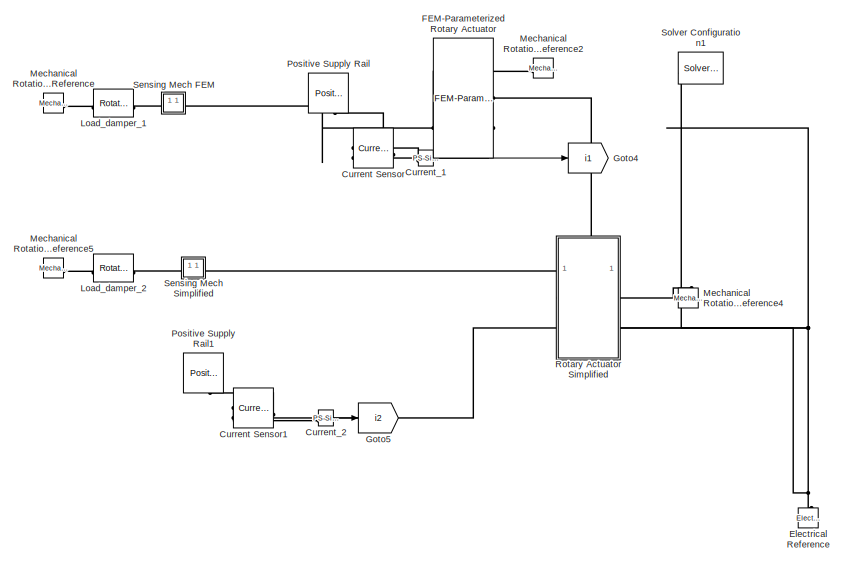
[diagram: root canvas - part 1/2, top left region]
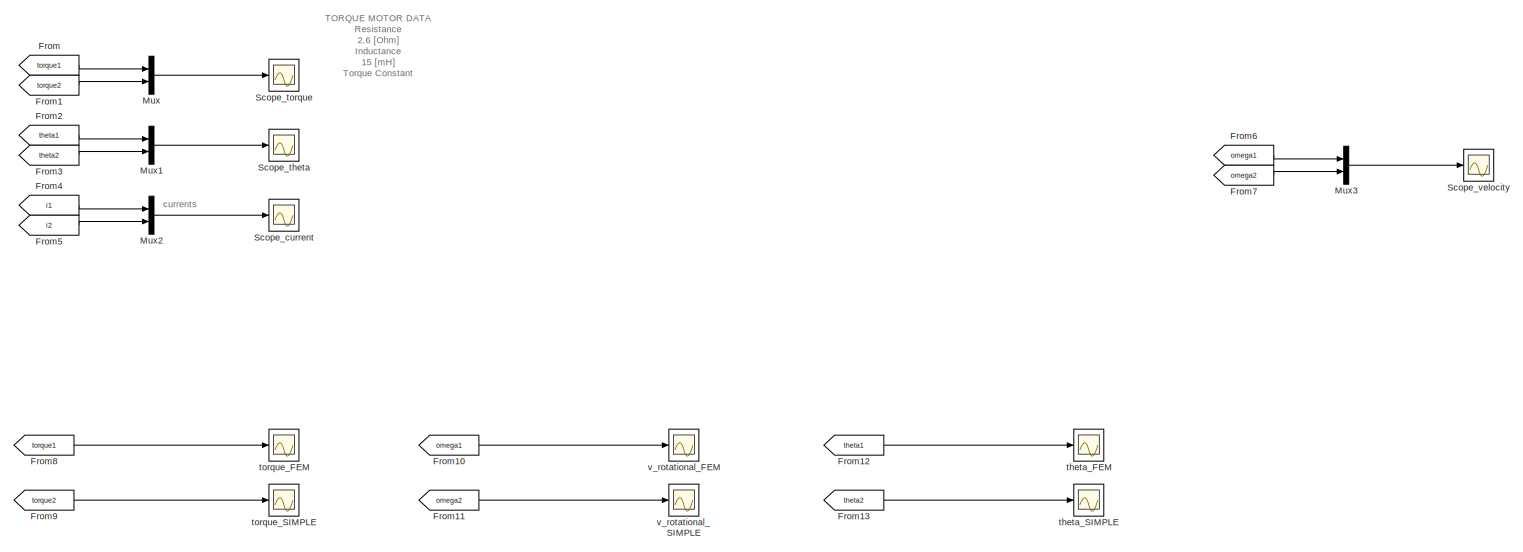
[diagram: root canvas - part 2/2, full width, bottom band]
MODEL slx_1f827622f27b
KIND model
CONFIG AbsTol = auto
CONFIG EnableMultiTasking = off
CONFIG FixedStep = auto
CONFIG MaxStep = auto
CONFIG MinStep = auto
CONFIG RelTol = 1e-3
CONFIG SampleTimeConstraint = Unconstrained
CONFIG SolverName = VariableStepAuto
CONFIG StartTime = 0.0
CONFIG StopTime = 10.0
BLOCK [Reference] Current Sensor  REF=fl_lib/Electrical/Electrical Sensors/Current Sensor
  SourceBlock = fl_lib/Electrical/Electrical Sensors/Current Sensor
  SourceType = Current Sensor
BLOCK [Reference] Current Sensor1  REF=fl_lib/Electrical/Electrical Sensors/Current Sensor
  SourceBlock = fl_lib/Electrical/Electrical Sensors/Current Sensor
  SourceType = Current Sensor
BLOCK [Reference] Current_1  REF=nesl_utility/PS-Simulink
Converter
  SourceBlock = nesl_utility/PS-Simulink\nConverter
  SourceType = PS-Simulink\nConverter
BLOCK [Reference] Current_2  REF=nesl_utility/PS-Simulink
Converter
  SourceBlock = nesl_utility/PS-Simulink\nConverter
  SourceType = PS-Simulink\nConverter
BLOCK [Reference] Electrical Reference  REF=fl_lib/Electrical/Electrical Elements/Electrical Reference
  NameLocation = right
  SourceBlock = fl_lib/Electrical/Electrical Elements/Electrical Reference
  SourceType = Electrical Reference
BLOCK [Reference] FEM-Parameterized Rotary Actuator  REF=ee_lib/Electromechanical/Mechatronic
Actuators/FEM-Parameterized
Rotary Actuator
  NameLocation = top
  SourceBlock = ee_lib/Electromechanical/Mechatronic\nActuators/FEM-Parameterized\nRotary Actuator
  SourceType = FEM-Parameterized\nRotary Actuator
BLOCK [From] From
  GotoTag = torque1
  TagVisibility = global
BLOCK [From] From1
  GotoTag = torque2
  TagVisibility = global
BLOCK [From] From10
  GotoTag = omega1
  TagVisibility = global
BLOCK [From] From11
  GotoTag = omega2
  TagVisibility = global
BLOCK [From] From12
  GotoTag = theta1
  TagVisibility = global
BLOCK [From] From13
  GotoTag = theta2
  TagVisibility = global
BLOCK [From] From2
  GotoTag = theta1
  TagVisibility = global
BLOCK [From] From3
  GotoTag = theta2
  TagVisibility = global
BLOCK [From] From4
  GotoTag = i1
  TagVisibility = global
BLOCK [From] From5
  GotoTag = i2
  TagVisibility = global
BLOCK [From] From6
  GotoTag = omega1
  TagVisibility = global
BLOCK [From] From7
  GotoTag = omega2
  TagVisibility = global
BLOCK [From] From8
  GotoTag = torque1
  TagVisibility = global
BLOCK [From] From9
  GotoTag = torque2
  TagVisibility = global
BLOCK [Goto] Goto4
  GotoTag = i1
  TagVisibility = global
BLOCK [Goto] Goto5
  GotoTag = i2
  TagVisibility = global
BLOCK [Reference] Load_damper_1  REF=fl_lib/Mechanical/Rotational Elements/Rotational Damper
  SourceBlock = fl_lib/Mechanical/Rotational Elements/Rotational Damper
  SourceType = Rotational Damper
BLOCK [Reference] Load_damper_2  REF=fl_lib/Mechanical/Rotational Elements/Rotational Damper
  SourceBlock = fl_lib/Mechanical/Rotational Elements/Rotational Damper
  SourceType = Rotational Damper
BLOCK [Reference] Mechanical Rotational Reference  REF=fl_lib/Mechanical/Rotational Elements/Mechanical
Rotational Reference
  SourceBlock = fl_lib/Mechanical/Rotational Elements/Mechanical\nRotational Reference
  SourceType = Mechanical\nRotational Reference
BLOCK [Reference] Mechanical Rotational Reference2  REF=fl_lib/Mechanical/Rotational Elements/Mechanical
Rotational Reference
  SourceBlock = fl_lib/Mechanical/Rotational Elements/Mechanical\nRotational Reference
  SourceType = Mechanical\nRotational Reference
BLOCK [Reference] Mechanical Rotational Reference4  REF=fl_lib/Mechanical/Rotational Elements/Mechanical
Rotational Reference
  NameLocation = right
  SourceBlock = fl_lib/Mechanical/Rotational Elements/Mechanical\nRotational Reference
  SourceType = Mechanical\nRotational Reference
BLOCK [Reference] Mechanical Rotational Reference5  REF=fl_lib/Mechanical/Rotational Elements/Mechanical
Rotational Reference
  SourceBlock = fl_lib/Mechanical/Rotational Elements/Mechanical\nRotational Reference
  SourceType = Mechanical\nRotational Reference
BLOCK [Mux] Mux
  DisplayOption = bar
  Inputs = 2
BLOCK [Mux] Mux1
  DisplayOption = bar
  Inputs = 2
BLOCK [Mux] Mux2
  DisplayOption = bar
  Inputs = 2
BLOCK [Mux] Mux3
  DisplayOption = bar
  Inputs = 2
BLOCK [Reference] Positive Supply Rail  REF=ee_lib/Sources/Positive Supply Rail
  NameLocation = right
  SourceBlock = ee_lib/Sources/Positive Supply Rail
  SourceType = Positive Supply Rail
BLOCK [Reference] Positive Supply Rail1  REF=ee_lib/Sources/Positive Supply Rail
  NameLocation = right
  SourceBlock = ee_lib/Sources/Positive Supply Rail
  SourceType = Positive Supply Rail
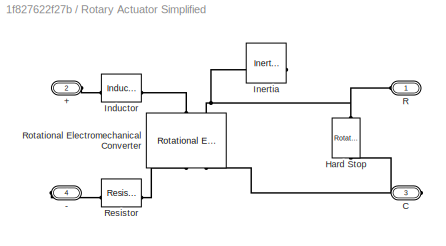
BLOCK [SubSystem] Rotary Actuator Simplified 
  Tag = PublishSubsystem
BLOCK [PMIOPort] Rotary Actuator Simplified /+
  Port = 2
  Side = Left
BLOCK [PMIOPort] Rotary Actuator Simplified /-
  Port = 4
  Side = Right
BLOCK [PMIOPort] Rotary Actuator Simplified /C
  Port = 3
  Side = Right
BLOCK [Reference] Rotary Actuator Simplified /Hard Stop  REF=fl_lib/Mechanical/Rotational Elements/Rotational Hard Stop
  NameLocation = right
  SourceBlock = fl_lib/Mechanical/Rotational Elements/Rotational Hard Stop
  SourceType = Rotational Hard Stop
BLOCK [Reference] Rotary Actuator Simplified /Inductor  REF=fl_lib/Electrical/Electrical Elements/Inductor
  SourceBlock = fl_lib/Electrical/Electrical Elements/Inductor
  SourceType = Inductor
BLOCK [Reference] Rotary Actuator Simplified /Inertia  REF=fl_lib/Mechanical/Rotational Elements/Inertia
  NameLocation = top
  SourceBlock = fl_lib/Mechanical/Rotational Elements/Inertia
  SourceType = Inertia
BLOCK [PMIOPort] Rotary Actuator Simplified /R
  Side = Left
BLOCK [Reference] Rotary Actuator Simplified /Resistor  REF=fl_lib/Electrical/Electrical Elements/Resistor
  NameLocation = top
  SourceBlock = fl_lib/Electrical/Electrical Elements/Resistor
  SourceType = Resistor
BLOCK [Reference] Rotary Actuator Simplified /Rotational Electromechanical Converter  REF=fl_lib/Electrical/Electrical Elements/Rotational
Electromechanical
Converter
  NameLocation = right
  SourceBlock = fl_lib/Electrical/Electrical Elements/Rotational\nElectromechanical\nConverter
  SourceType = Rotational\nElectromechanical\nConverter
BLOCK [Scope] Scope_current
  Floating = off
  NumInputPorts = 1
  ScopeSpecificationString = Simulink.scopes.TimeScopeBlockCfg('CurrentConfiguration', extmgr.ConfigurationSet(extmgr.Configuration('Core','General UI',true,'FigureColor',[1 1 1]),extmgr.Configuration('Core','Source UI',true),extmgr.Configuration('Sources','WiredSimulink',true,'DataLoggingVariableName','ScopeData1'),extmgr.Configuration('Visuals','Time Domain',true,'SerializedDisplays',{struct('MinYLimReal','-5','MaxYLimReal'...<+1760ch>
BLOCK [Scope] Scope_theta
  Floating = off
  NumInputPorts = 1
  ScopeSpecificationString = Simulink.scopes.TimeScopeBlockCfg('CurrentConfiguration', extmgr.ConfigurationSet(extmgr.Configuration('Core','General UI',true,'FigureColor',[1 1 1]),extmgr.Configuration('Core','Source UI',true),extmgr.Configuration('Sources','WiredSimulink',true,'DataLoggingVariableName','ScopeData2'),extmgr.Configuration('Visuals','Time Domain',true,'SerializedDisplays',{struct('MinYLimReal','13.75','MaxYLimRe...<+1798ch>
BLOCK [Scope] Scope_torque
  Floating = off
  NumInputPorts = 1
  ScopeSpecificationString = Simulink.scopes.TimeScopeBlockCfg('CurrentConfiguration', extmgr.ConfigurationSet(extmgr.Configuration('Core','General UI',true,'FigureColor',[1 1 1]),extmgr.Configuration('Core','Source UI',true),extmgr.Configuration('Sources','WiredSimulink',true,'DataLoggingVariableName','ScopeData3'),extmgr.Configuration('Visuals','Time Domain',true,'SerializedDisplays',{struct('MinYLimReal','-0.01448','MaxYLi...<+1834ch>
BLOCK [Scope] Scope_velocity
  Floating = off
  NumInputPorts = 1
  ScopeSpecificationString = Simulink.scopes.TimeScopeBlockCfg('CurrentConfiguration', extmgr.ConfigurationSet(extmgr.Configuration('Core','General UI',true,'FigureColor',[1 1 1]),extmgr.Configuration('Core','Source UI',true),extmgr.Configuration('Sources','WiredSimulink',true,'DataLoggingVariableName','ScopeData4'),extmgr.Configuration('Visuals','Time Domain',true,'SerializedDisplays',{struct('MinYLimReal','-0.2','MaxYLimRea...<+1769ch>
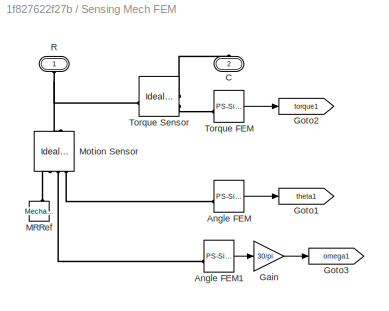
BLOCK [SubSystem] Sensing Mech FEM 
  NameLocation = top
BLOCK [Reference] Sensing Mech FEM /Angle FEM  REF=nesl_utility/PS-Simulink
Converter
  SourceBlock = nesl_utility/PS-Simulink\nConverter
  SourceType = PS-Simulink\nConverter
BLOCK [Reference] Sensing Mech FEM /Angle FEM1  REF=nesl_utility/PS-Simulink
Converter
  SourceBlock = nesl_utility/PS-Simulink\nConverter
  SourceType = PS-Simulink\nConverter
BLOCK [PMIOPort] Sensing Mech FEM /C
  NameLocation = right
  Port = 2
  Side = Right
BLOCK [Gain] Sensing Mech FEM /Gain
  Gain = 30/pi
BLOCK [Goto] Sensing Mech FEM /Goto1
  GotoTag = theta1
  TagVisibility = global
BLOCK [Goto] Sensing Mech FEM /Goto2
  GotoTag = torque1
  TagVisibility = global
BLOCK [Goto] Sensing Mech FEM /Goto3
  GotoTag = omega1
  TagVisibility = global
BLOCK [Reference] Sensing Mech FEM /MRRef  REF=fl_lib/Mechanical/Rotational Elements/Mechanical
Rotational Reference
  NameLocation = right
  SourceBlock = fl_lib/Mechanical/Rotational Elements/Mechanical\nRotational Reference
  SourceType = Mechanical\nRotational Reference
BLOCK [Reference] Sensing Mech FEM /Motion Sensor  REF=fl_lib/Mechanical/Mechanical Sensors/Ideal Rotational
Motion Sensor
  NameLocation = right
  SourceBlock = fl_lib/Mechanical/Mechanical Sensors/Ideal Rotational\nMotion Sensor
  SourceType = Ideal Rotational\nMotion Sensor
BLOCK [PMIOPort] Sensing Mech FEM /R
  NameLocation = right
  Side = Left
BLOCK [Reference] Sensing Mech FEM /Torque FEM  REF=nesl_utility/PS-Simulink
Converter
  SourceBlock = nesl_utility/PS-Simulink\nConverter
  SourceType = PS-Simulink\nConverter
BLOCK [Reference] Sensing Mech FEM /Torque Sensor  REF=fl_lib/Mechanical/Mechanical Sensors/Ideal Torque Sensor
  SourceBlock = fl_lib/Mechanical/Mechanical Sensors/Ideal Torque Sensor
  SourceType = Ideal Torque Sensor
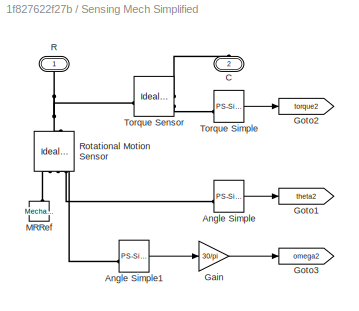
BLOCK [SubSystem] Sensing Mech Simplified
  NameLocation = top
BLOCK [Reference] Sensing Mech Simplified/Angle Simple  REF=nesl_utility/PS-Simulink
Converter
  SourceBlock = nesl_utility/PS-Simulink\nConverter
  SourceType = PS-Simulink\nConverter
BLOCK [Reference] Sensing Mech Simplified/Angle Simple1  REF=nesl_utility/PS-Simulink
Converter
  SourceBlock = nesl_utility/PS-Simulink\nConverter
  SourceType = PS-Simulink\nConverter
BLOCK [PMIOPort] Sensing Mech Simplified/C
  NameLocation = right
  Port = 2
  Side = Right
BLOCK [Gain] Sensing Mech Simplified/Gain
  Gain = 30/pi
BLOCK [Goto] Sensing Mech Simplified/Goto1
  GotoTag = theta2
  TagVisibility = global
BLOCK [Goto] Sensing Mech Simplified/Goto2
  GotoTag = torque2
  TagVisibility = global
BLOCK [Goto] Sensing Mech Simplified/Goto3
  GotoTag = omega2
  TagVisibility = global
BLOCK [Reference] Sensing Mech Simplified/MRRef  REF=fl_lib/Mechanical/Rotational Elements/Mechanical
Rotational Reference
  NameLocation = right
  SourceBlock = fl_lib/Mechanical/Rotational Elements/Mechanical\nRotational Reference
  SourceType = Mechanical\nRotational Reference
BLOCK [PMIOPort] Sensing Mech Simplified/R
  NameLocation = right
  Side = Left
BLOCK [Reference] Sensing Mech Simplified/Rotational Motion Sensor  REF=fl_lib/Mechanical/Mechanical Sensors/Ideal Rotational
Motion Sensor
  NameLocation = right
  SourceBlock = fl_lib/Mechanical/Mechanical Sensors/Ideal Rotational\nMotion Sensor
  SourceType = Ideal Rotational\nMotion Sensor
BLOCK [Reference] Sensing Mech Simplified/Torque Sensor  REF=fl_lib/Mechanical/Mechanical Sensors/Ideal Torque Sensor
  SourceBlock = fl_lib/Mechanical/Mechanical Sensors/Ideal Torque Sensor
  SourceType = Ideal Torque Sensor
BLOCK [Reference] Sensing Mech Simplified/Torque Simple  REF=nesl_utility/PS-Simulink
Converter
  SourceBlock = nesl_utility/PS-Simulink\nConverter
  SourceType = PS-Simulink\nConverter
BLOCK [Reference] Solver Configuration1  REF=nesl_utility/Solver
Configuration
  SourceBlock = nesl_utility/Solver\nConfiguration
  SourceType = Solver\nConfiguration
BLOCK [Scope] theta_FEM
  Floating = off
  NumInputPorts = 1
  ScopeSpecificationString = Simulink.scopes.TimeScopeBlockCfg('CurrentConfiguration', extmgr.ConfigurationSet(extmgr.Configuration('Core','General UI',true,'FigureColor',[1 1 1]),extmgr.Configuration('Core','Source UI',true),extmgr.Configuration('Sources','WiredSimulink',true,'DataLoggingVariableName','ScopeData5','DataLogging',true,'DataLoggingSaveFormat','Array'),extmgr.Configuration('Visuals','Time Domain',true,'Serialize...<+1835ch>
BLOCK [Scope] theta_SIMPLE
  Floating = off
  NumInputPorts = 1
  ScopeSpecificationString = Simulink.scopes.TimeScopeBlockCfg('CurrentConfiguration', extmgr.ConfigurationSet(extmgr.Configuration('Core','General UI',true,'FigureColor',[1 1 1]),extmgr.Configuration('Core','Source UI',true),extmgr.Configuration('Sources','WiredSimulink',true,'DataLoggingVariableName','ScopeData6','DataLogging',true,'DataLoggingSaveFormat','Array'),extmgr.Configuration('Visuals','Time Domain',true,'Serialize...<+1838ch>
BLOCK [Scope] torque_FEM
  Floating = off
  NumInputPorts = 1
  ScopeSpecificationString = Simulink.scopes.TimeScopeBlockCfg('CurrentConfiguration', extmgr.ConfigurationSet(extmgr.Configuration('Core','General UI',true,'FigureColor',[1 1 1]),extmgr.Configuration('Core','Source UI',true),extmgr.Configuration('Sources','WiredSimulink',true,'DataLoggingVariableName','torque_fem','DataLogging',true,'DataLoggingSaveFormat','Array'),extmgr.Configuration('Visuals','Time Domain',true,'Serialize...<+1862ch>
BLOCK [Scope] torque_SIMPLE
  Floating = off
  NumInputPorts = 1
  ScopeSpecificationString = Simulink.scopes.TimeScopeBlockCfg('CurrentConfiguration', extmgr.ConfigurationSet(extmgr.Configuration('Core','General UI',true,'FigureColor',[1 1 1]),extmgr.Configuration('Core','Source UI',true),extmgr.Configuration('Sources','WiredSimulink',true,'DataLoggingVariableName','torque_simple','DataLogging',true,'DataLoggingSaveFormat','Array'),extmgr.Configuration('Visuals','Time Domain',true,'Serial...<+1868ch>
BLOCK [Scope] v_rotational_FEM
  Floating = off
  NumInputPorts = 1
  ScopeSpecificationString = Simulink.scopes.TimeScopeBlockCfg('CurrentConfiguration', extmgr.ConfigurationSet(extmgr.Configuration('Core','General UI',true,'FigureColor',[1 1 1]),extmgr.Configuration('Core','Source UI',true),extmgr.Configuration('Sources','WiredSimulink',true,'DataLoggingVariableName','speed_rot_fem','DataLogging',true,'DataLoggingSaveFormat','Array'),extmgr.Configuration('Visuals','Time Domain',true,'Serial...<+1801ch>
BLOCK [Scope] v_rotational_SIMPLE
  Floating = off
  NumInputPorts = 1
  ScopeSpecificationString = Simulink.scopes.TimeScopeBlockCfg('CurrentConfiguration', extmgr.ConfigurationSet(extmgr.Configuration('Core','General UI',true,'FigureColor',[1 1 1]),extmgr.Configuration('Core','Source UI',true),extmgr.Configuration('Sources','WiredSimulink',true,'DataLogging',true,'DataLoggingSaveFormat','Array','DataLoggingVariableName','speed_rot_simple'),extmgr.Configuration('Visuals','Time Domain',true,'Ser...<+1824ch>
ANNOTATION (root): TORQUE MOTOR DATA Resistance 2.6 [Ohm] Inductance 15 [mH] Torque Constant 80 [mNm/A] Weight 320 [g] Rotor Diameter 40 [mm]
ANNOTATION (root): currents
LINE Current_1:1 -> Goto4:1
LINE Current_2:1 -> Goto5:1
LINE From10:1 -> v_rotational_FEM:1
LINE From11:1 -> v_rotational_SIMPLE:1
LINE From12:1 -> theta_FEM:1
LINE From13:1 -> theta_SIMPLE:1
LINE From1:1 -> Mux:2
LINE From2:1 -> Mux1:1
LINE From3:1 -> Mux1:2
LINE From4:1 -> Mux2:1
LINE From5:1 -> Mux2:2
LINE From6:1 -> Mux3:1
LINE From7:1 -> Mux3:2
LINE From8:1 -> torque_FEM:1
LINE From9:1 -> torque_SIMPLE:1
LINE From:1 -> Mux:1
LINE Mux1:1 -> Scope_theta:1
LINE Mux2:1 -> Scope_current:1
LINE Mux3:1 -> Scope_velocity:1
LINE Mux:1 -> Scope_torque:1
LINE Sensing Mech FEM /Angle FEM1:1 -> Sensing Mech FEM /Gain:1
LINE Sensing Mech FEM /Angle FEM:1 -> Sensing Mech FEM /Goto1:1
LINE Sensing Mech FEM /Gain:1 -> Sensing Mech FEM /Goto3:1
LINE Sensing Mech FEM /Torque FEM:1 -> Sensing Mech FEM /Goto2:1
LINE Sensing Mech Simplified/Angle Simple1:1 -> Sensing Mech Simplified/Gain:1
LINE Sensing Mech Simplified/Angle Simple:1 -> Sensing Mech Simplified/Goto1:1
LINE Sensing Mech Simplified/Gain:1 -> Sensing Mech Simplified/Goto3:1
LINE Sensing Mech Simplified/Torque Simple:1 -> Sensing Mech Simplified/Goto2:1
PLINE Current Sensor1:LConn1 -- Positive Supply Rail1:RConn1
PLINE Current Sensor1:RConn1 -- Current_2:LConn1
PLINE Current Sensor1:RConn2 -- Rotary Actuator Simplified :LConn2
PLINE Current Sensor:LConn1 -- Positive Supply Rail:RConn1
PLINE Current Sensor:RConn1 -- Current_1:LConn1
PLINE Current Sensor:RConn2 -- FEM-Parameterized Rotary Actuator:LConn1
PNET net1: Electrical Reference:LConn1 -- FEM-Parameterized Rotary Actuator:RConn1 -- Rotary Actuator Simplified :RConn2 -- Solver Configuration1:RConn1
PLINE FEM-Parameterized Rotary Actuator:LConn2 -- Sensing Mech FEM :LConn1
PLINE FEM-Parameterized Rotary Actuator:RConn2 -- Mechanical Rotational Reference2:LConn1
PLINE Load_damper_1:LConn1 -- Sensing Mech FEM :RConn1
PLINE Load_damper_1:RConn1 -- Mechanical Rotational Reference:LConn1
PLINE Load_damper_2:LConn1 -- Sensing Mech Simplified:RConn1
PLINE Load_damper_2:RConn1 -- Mechanical Rotational Reference5:LConn1
PLINE Mechanical Rotational Reference4:LConn1 -- Rotary Actuator Simplified :RConn1
PLINE Rotary Actuator Simplified /+:RConn1 -- Rotary Actuator Simplified /Inductor:LConn1
PLINE Rotary Actuator Simplified /-:RConn1 -- Rotary Actuator Simplified /Resistor:LConn1
PNET net2: Rotary Actuator Simplified /C:RConn1 -- Rotary Actuator Simplified /Hard Stop:RConn1 -- Rotary Actuator Simplified /Rotational Electromechanical Converter:RConn2
PNET net3: Rotary Actuator Simplified /Hard Stop:LConn1 -- Rotary Actuator Simplified /Inertia:LConn1 -- Rotary Actuator Simplified /R:RConn1 -- Rotary Actuator Simplified /Rotational Electromechanical Converter:LConn2
PLINE Rotary Actuator Simplified /Inductor:RConn1 -- Rotary Actuator Simplified /Rotational Electromechanical Converter:LConn1
PLINE Rotary Actuator Simplified /Resistor:RConn1 -- Rotary Actuator Simplified /Rotational Electromechanical Converter:RConn1
PLINE Rotary Actuator Simplified :LConn1 -- Sensing Mech Simplified:LConn1
PLINE Sensing Mech FEM /Angle FEM1:LConn1 -- Sensing Mech FEM /Motion Sensor:RConn2
PLINE Sensing Mech FEM /Angle FEM:LConn1 -- Sensing Mech FEM /Motion Sensor:RConn3
PLINE Sensing Mech FEM /C:RConn1 -- Sensing Mech FEM /Torque Sensor:RConn1
PLINE Sensing Mech FEM /MRRef:LConn1 -- Sensing Mech FEM /Motion Sensor:RConn1
PNET net4: Sensing Mech FEM /Motion Sensor:LConn1 -- Sensing Mech FEM /R:RConn1 -- Sensing Mech FEM /Torque Sensor:LConn1
PLINE Sensing Mech FEM /Torque FEM:LConn1 -- Sensing Mech FEM /Torque Sensor:RConn2
PLINE Sensing Mech Simplified/Angle Simple1:LConn1 -- Sensing Mech Simplified/Rotational Motion Sensor:RConn2
PLINE Sensing Mech Simplified/Angle Simple:LConn1 -- Sensing Mech Simplified/Rotational Motion Sensor:RConn3
PLINE Sensing Mech Simplified/C:RConn1 -- Sensing Mech Simplified/Torque Sensor:RConn1
PLINE Sensing Mech Simplified/MRRef:LConn1 -- Sensing Mech Simplified/Rotational Motion Sensor:RConn1
PNET net5: Sensing Mech Simplified/R:RConn1 -- Sensing Mech Simplified/Rotational Motion Sensor:LConn1 -- Sensing Mech Simplified/Torque Sensor:LConn1
PLINE Sensing Mech Simplified/Torque Sensor:RConn2 -- Sensing Mech Simplified/Torque Simple:LConn1
note: PNET lines group multi-terminal physical nets as a canonical sorted terminal list (undirected conserving connections); 2-terminal nets keep the pairwise PLINE form
